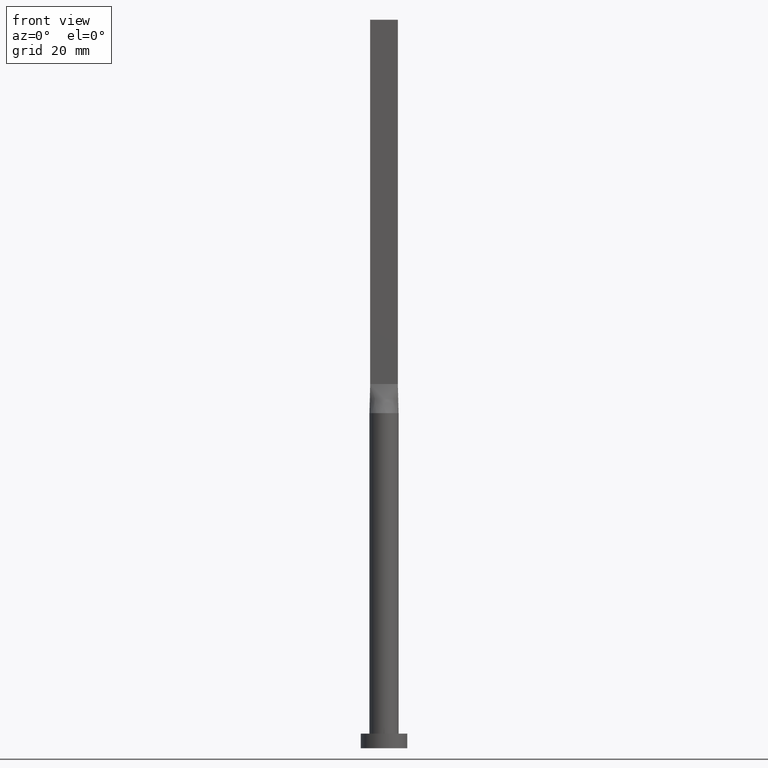
[diagram: clean part render]
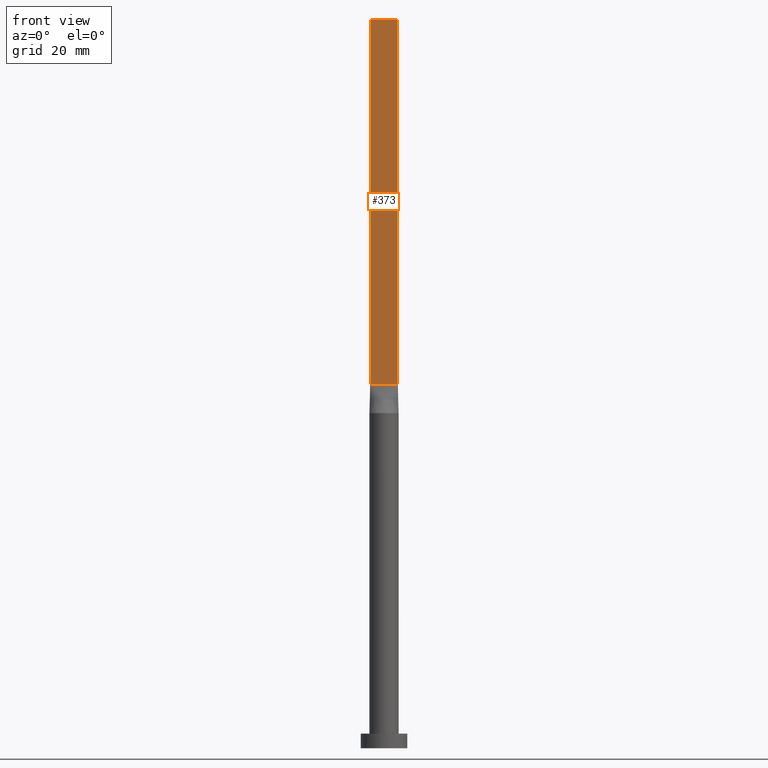
[diagram: same view with one face highlighted and labeled with its STEP entity id]
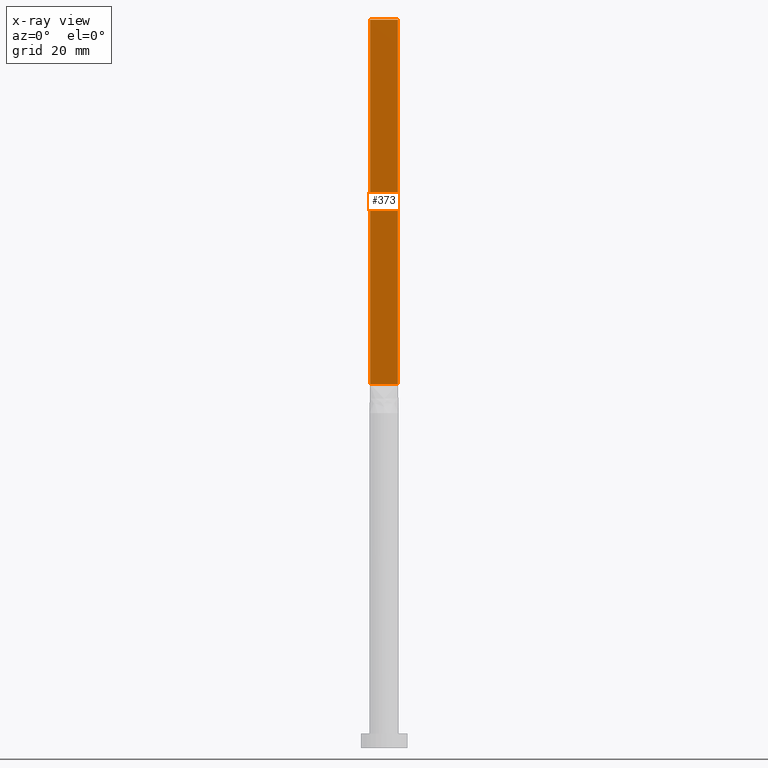
[diagram: x-ray of the same camera — body ghosted, the highlighted face saturated]
A machine part, front view. The second image highlights one B-rep face of the part: STEP entity #373.
The next image is the same camera in x-ray: the body ghosted, the highlighted face saturated — about 0% of this face is hidden behind the body in this view.
In plain terms, the highlighted planar face has unit normal (0, 1, -0).
Its self-contained STEP definition (entity closure, byte-faithful):
#9 = DIRECTION ( 'NONE',  ( -0.000000000000000000, -0.000000000000000000, -1.000000000000000000 ) ) ;
#36 = EDGE_CURVE ( 'NONE', #321, #604, #570, .T. ) ;
#39 = DIRECTION ( 'NONE',  ( 1.000000000000000000, -6.847592668329501559E-17, 0.000000000000000000 ) ) ;
#47 = CARTESIAN_POINT ( 'NONE',  ( 4.750000000000000000, -0.7499999999999997780, 250.0000000000000000 ) ) ;
#61 = VECTOR ( 'NONE', #245, 1000.000000000000000 ) ;
#78 = AXIS2_PLACEMENT_3D ( 'NONE', #257, #402, #530 ) ;
#90 = PLANE ( 'NONE',  #78 ) ;
#95 = CARTESIAN_POINT ( 'NONE',  ( -4.750000000000000000, -0.7499999999999991118, 250.0000000000000000 ) ) ;
#154 = FACE_OUTER_BOUND ( 'NONE', #442, .T. ) ;
#183 = EDGE_CURVE ( 'NONE', #518, #321, #406, .T. ) ;
#200 = LINE ( 'NONE', #47, #61 ) ;
#207 = CARTESIAN_POINT ( 'NONE',  ( -4.750000000000000000, -0.7499999999999991118, 250.0000000000000000 ) ) ;
#244 = ORIENTED_EDGE ( 'NONE', *, *, #364, .F. ) ;
#245 = DIRECTION ( 'NONE',  ( -0.000000000000000000, -0.000000000000000000, -1.000000000000000000 ) ) ;
#256 = CARTESIAN_POINT ( 'NONE',  ( -4.750000000000000000, -0.7499999999999991118, 250.0000000000000000 ) ) ;
#257 = CARTESIAN_POINT ( 'NONE',  ( -4.750000000000000000, -0.7499999999999991118, 250.0000000000000000 ) ) ;
#283 = VECTOR ( 'NONE', #9, 1000.000000000000000 ) ;
#292 = DIRECTION ( 'NONE',  ( 1.000000000000000000, -6.847592668329501559E-17, 0.000000000000000000 ) ) ;
#313 = CARTESIAN_POINT ( 'NONE',  ( 4.750000000000000000, -0.7499999999999997780, 250.0000000000000000 ) ) ;
#321 = VERTEX_POINT ( 'NONE', #613 ) ;
#329 = CARTESIAN_POINT ( 'NONE',  ( -4.750000000000000000, -0.7499999999999991118, 125.0000000000000000 ) ) ;
#364 = EDGE_CURVE ( 'NONE', #518, #578, #436, .T. ) ;
#368 = ORIENTED_EDGE ( 'NONE', *, *, #36, .T. ) ;
#373 = ADVANCED_FACE ( 'NONE', ( #154 ), #90, .F. ) ;
#384 = ORIENTED_EDGE ( 'NONE', *, *, #565, .F. ) ;
#402 = DIRECTION ( 'NONE',  ( 6.847592668329501559E-17, 1.000000000000000000, -0.000000000000000000 ) ) ;
#406 = LINE ( 'NONE', #95, #283 ) ;
#421 = VECTOR ( 'NONE', #39, 1000.000000000000000 ) ;
#429 = ORIENTED_EDGE ( 'NONE', *, *, #183, .T. ) ;
#436 = LINE ( 'NONE', #207, #449 ) ;
#442 = EDGE_LOOP ( 'NONE', ( #368, #384, #244, #429 ) ) ;
#449 = VECTOR ( 'NONE', #292, 1000.000000000000000 ) ;
#510 = CARTESIAN_POINT ( 'NONE',  ( 4.750000000000000000, -0.7499999999999997780, 125.0000000000000000 ) ) ;
#518 = VERTEX_POINT ( 'NONE', #256 ) ;
#530 = DIRECTION ( 'NONE',  ( -1.000000000000000000, 6.847592668329501559E-17, 0.000000000000000000 ) ) ;
#565 = EDGE_CURVE ( 'NONE', #578, #604, #200, .T. ) ;
#570 = LINE ( 'NONE', #329, #421 ) ;
#578 = VERTEX_POINT ( 'NONE', #313 ) ;
#604 = VERTEX_POINT ( 'NONE', #510 ) ;
#613 = CARTESIAN_POINT ( 'NONE',  ( -4.750000000000000000, -0.7499999999999991118, 125.0000000000000000 ) ) ;